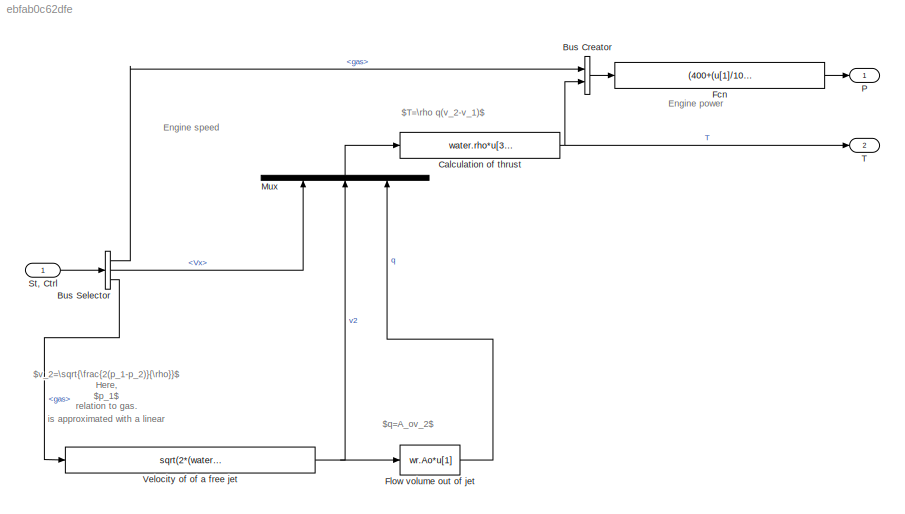
MODEL slx_ebfab0c62dfe
KIND model
CONFIG AbsTol = auto
CONFIG EnableMultiTasking = off
CONFIG FixedStep = auto
CONFIG MaxStep = auto
CONFIG MinStep = auto
CONFIG RelTol = 1e-3
CONFIG SampleTimeConstraint = Unconstrained
CONFIG Solver = FixedStepAuto
CONFIG SolverName = FixedStepAuto
CONFIG StartTime = 0.0
CONFIG StopTime = 180
BLOCK [BusCreator] Bus Creator
  DisplayOption = bar
  InheritFromInputs = on
  Inputs = 2
  Ports = [2, 1]
BLOCK [BusSelector] Bus Selector
  OutputAsBus = off
  OutputSignals = Control.gas,State.Vx,Control.gas
  Ports = [1, 3]
BLOCK [Fcn] Calculation of thrust
  Expr = water.rho*u[3]*(u[2]-u[1])
BLOCK [Fcn] Fcn
  Expr = (400+(u[1]/100)*7200)*(u[2]*0.039)*0.8/1000
BLOCK [Fcn] Flow volume out of jet
  Expr = wr.Ao*u[1]
BLOCK [Mux] Mux
  DisplayOption = bar
  Inputs = 3
  Ports = [3, 1]
BLOCK [Outport] P
  IconDisplay = Port number
  OutDataTypeStr = double
  PortDimensions = 1
  SampleTime = 0
  SamplingMode = Sample based
  SignalType = real
BLOCK [Inport] St, Ctrl
  IconDisplay = Port number
  OutDataTypeStr = Bus: slBus1
BLOCK [Outport] T
  IconDisplay = Port number
  Port = 2
BLOCK [Fcn] Velocity of of a free jet
  Expr = sqrt(2*(water.p(0.3)*(1+9*u[1])-water.p(0.3))/water.rho)
ANNOTATION (root): $v_2=\sqrt{\frac{2(p_1-p_2)}{\rho}}$ Here, $p_1$ is approximated with a linear relation to gas.
ANNOTATION (root): $T=\rho q(v_2-v_1)$
ANNOTATION (root): $q=A_ov_2$
ANNOTATION (root): Engine power
ANNOTATION (root): Engine speed
LINE Bus Creator:1 -> Fcn:1
LINE Bus Selector:1 -> Bus Creator:1
LINE Bus Selector:2 -> Mux:1
LINE Bus Selector:3 -> Velocity of of a free jet:1
NET Calculation of thrust:1 -> Bus Creator:2, T:1
LINE Fcn:1 -> P:1
LINE Flow volume out of jet:1 -> Mux:3
LINE Mux:1 -> Calculation of thrust:1
LINE St, Ctrl:1 -> Bus Selector:1
NET Velocity of of a free jet:1 -> Flow volume out of jet:1, Mux:2
note: NET lines group one-source signal fan-out (src -> all destinations, sorted); 1:1 wires keep LINE
